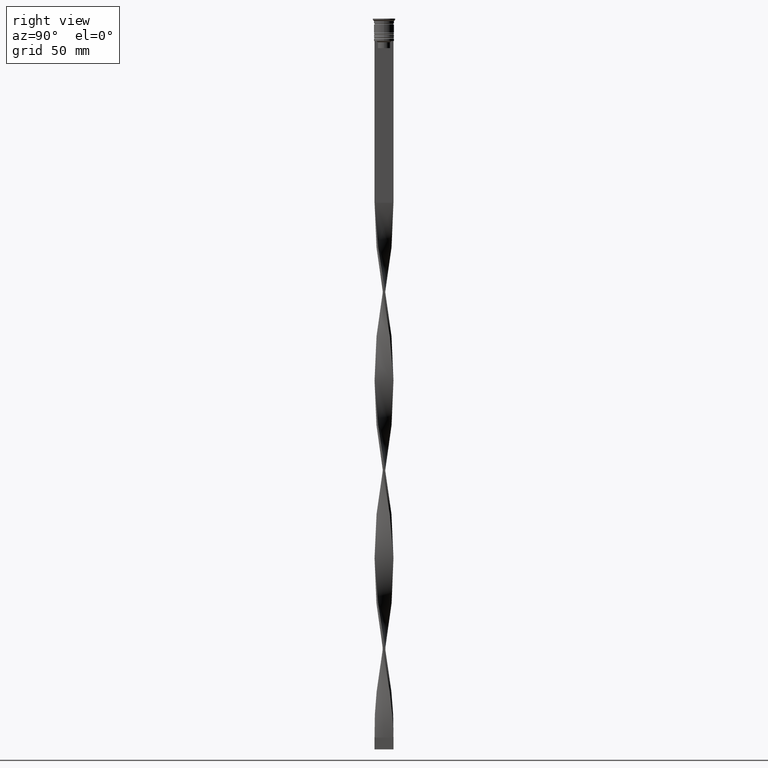
[diagram: clean part render]
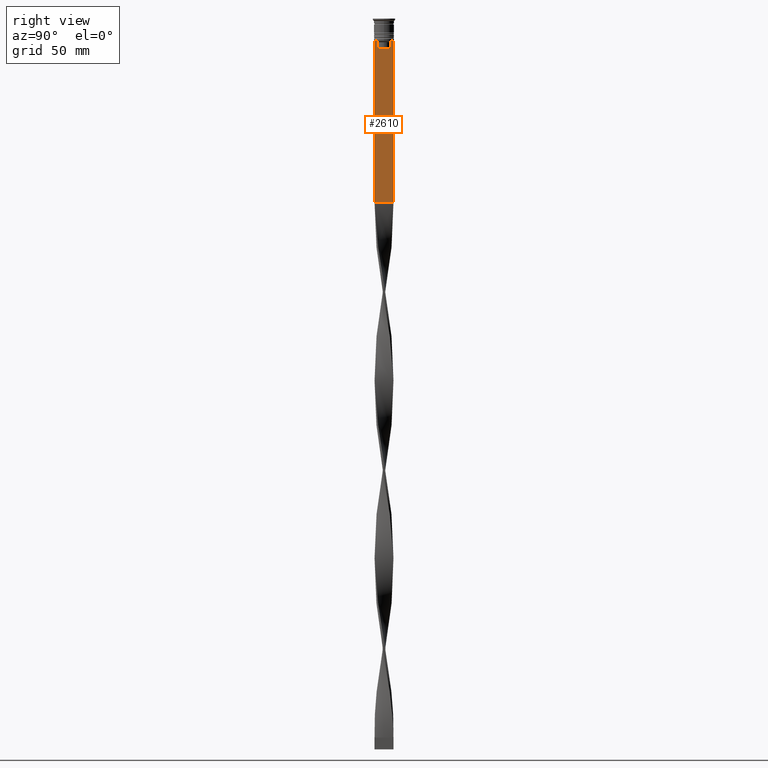
[diagram: same view with one face highlighted and labeled with its STEP entity id]
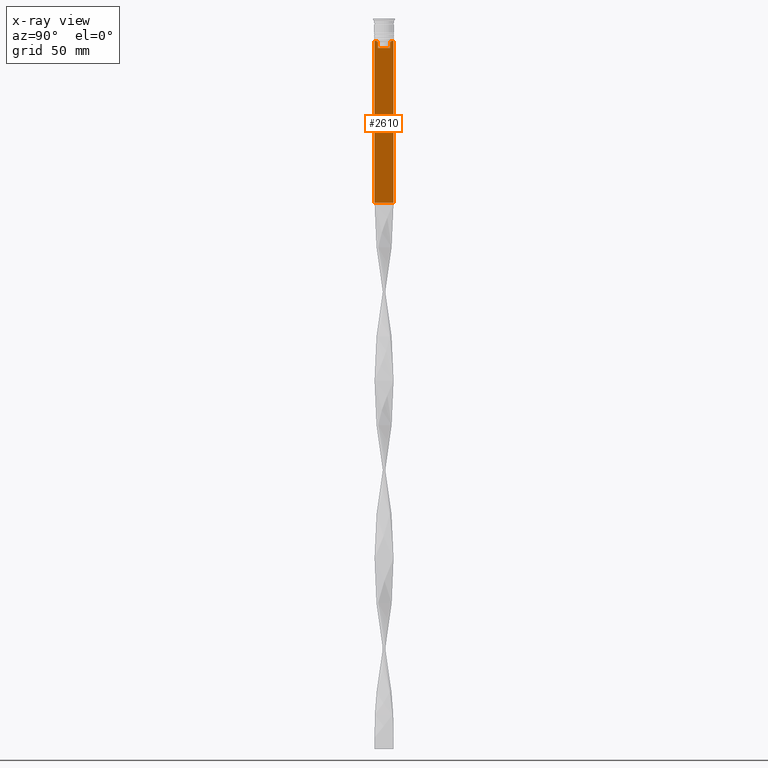
[diagram: x-ray of the same camera — body ghosted, the highlighted face saturated]
A machine part, right view. The second image highlights one B-rep face of the part: STEP entity #2610.
The next image is the same camera in x-ray: the body ghosted, the highlighted face saturated — about 0% of this face is hidden behind the body in this view.
In plain terms, the highlighted planar face has unit normal (-1, 0, 0).
Its self-contained STEP definition (entity closure, byte-faithful):
#20 = ORIENTED_EDGE ( 'NONE', *, *, #1108, .T. ) ;
#67 = ORIENTED_EDGE ( 'NONE', *, *, #259, .T. ) ;
#79 = ORIENTED_EDGE ( 'NONE', *, *, #116, .T. ) ;
#116 = EDGE_CURVE ( 'NONE', #1816, #3439, #1828, .T. ) ;
#130 = B_SPLINE_CURVE_WITH_KNOTS ( 'NONE', 3,
 ( #2520, #674, #2807, #1631 ),
 .UNSPECIFIED., .F., .F.,
 ( 4, 4 ),
 ( 0.005378271293598279809, 0.006090816219555997280 ),
 .UNSPECIFIED. ) ;
#182 = EDGE_CURVE ( 'NONE', #2214, #3006, #3378, .T. ) ;
#193 = CARTESIAN_POINT ( 'NONE',  ( 0.5000000000000000000, 3.110064308016796897, -9.500000000000000000 ) ) ;
#218 = ORIENTED_EDGE ( 'NONE', *, *, #182, .T. ) ;
#259 = EDGE_CURVE ( 'NONE', #3439, #2569, #130, .T. ) ;
#628 = CARTESIAN_POINT ( 'NONE',  ( 0.5000000000000000000, -4.000000000000000000, -1.437742251701450202 ) ) ;
#647 = DIRECTION ( 'NONE',  ( -1.000000000000000000, 0.000000000000000000, 0.000000000000000000 ) ) ;
#674 = CARTESIAN_POINT ( 'NONE',  ( 0.5000000000000000000, 2.941047749529105193, -9.666873766989334982 ) ) ;
#684 = CARTESIAN_POINT ( 'NONE',  ( 0.5000000000000000000, -2.602402735934616906, 0.000000000000000000 ) ) ;
#702 = EDGE_CURVE ( 'NONE', #3006, #1395, #3931, .T. ) ;
#715 = CARTESIAN_POINT ( 'NONE',  ( 0.5000000000000000000, 2.602402735934616906, -12.50000000000000000 ) ) ;
#744 = VECTOR ( 'NONE', #1660, 1000.000000000000000 ) ;
#819 = CARTESIAN_POINT ( 'NONE',  ( 0.5000000000000000000, 4.000000000000000000, -78.00000000000000000 ) ) ;
#826 = VERTEX_POINT ( 'NONE', #715 ) ;
#837 = EDGE_CURVE ( 'NONE', #1395, #2329, #1336, .T. ) ;
#860 = CARTESIAN_POINT ( 'NONE',  ( 0.5000000000000000000, -4.000000000000000000, -9.500000000000000000 ) ) ;
#874 = AXIS2_PLACEMENT_3D ( 'NONE', #628, #647, #2800 ) ;
#944 = CARTESIAN_POINT ( 'NONE',  ( 0.5000000000000000000, -4.000000000000000000, -9.500000000000000000 ) ) ;
#1020 = CARTESIAN_POINT ( 'NONE',  ( 0.5000000000000000000, 2.649999999999995914, -12.50000000000000000 ) ) ;
#1108 = EDGE_CURVE ( 'NONE', #2569, #826, #2892, .T. ) ;
#1153 = CARTESIAN_POINT ( 'NONE',  ( 0.5000000000000000000, -3.110064308016796897, -9.500000000000000000 ) ) ;
#1155 = CARTESIAN_POINT ( 'NONE',  ( 0.5000000000000000000, 2.602402735934616906, 0.000000000000000000 ) ) ;
#1291 = DIRECTION ( 'NONE',  ( 0.000000000000000000, 1.000000000000000000, 0.000000000000000000 ) ) ;
#1323 = VECTOR ( 'NONE', #1601, 1000.000000000000000 ) ;
#1328 = VECTOR ( 'NONE', #1291, 1000.000000000000000 ) ;
#1336 = LINE ( 'NONE', #2561, #2801 ) ;
#1347 = ORIENTED_EDGE ( 'NONE', *, *, #2030, .T. ) ;
#1349 = CARTESIAN_POINT ( 'NONE',  ( 0.5000000000000000000, -4.000000000000000000, -78.00000000000000000 ) ) ;
#1374 = CARTESIAN_POINT ( 'NONE',  ( 0.5000000000000000000, -2.602402735934616906, -10.00000000000000178 ) ) ;
#1375 = VECTOR ( 'NONE', #3866, 1000.000000000000000 ) ;
#1395 = VERTEX_POINT ( 'NONE', #944 ) ;
#1442 = VECTOR ( 'NONE', #2361, 1000.000000000000000 ) ;
#1462 = CARTESIAN_POINT ( 'NONE',  ( 0.5000000000000000000, -4.000000000000000000, -9.500000000000000000 ) ) ;
#1601 = DIRECTION ( 'NONE',  ( -0.000000000000000000, -0.000000000000000000, 1.000000000000000000 ) ) ;
#1631 = CARTESIAN_POINT ( 'NONE',  ( 0.5000000000000000000, 2.602402735934616906, -10.00000000000000178 ) ) ;
#1660 = DIRECTION ( 'NONE',  ( 0.000000000000000000, -1.000000000000000000, 0.000000000000000000 ) ) ;
#1752 = CARTESIAN_POINT ( 'NONE',  ( 0.5000000000000000000, -2.602402735934616906, -10.00000000000000178 ) ) ;
#1816 = VERTEX_POINT ( 'NONE', #2670 ) ;
#1828 = LINE ( 'NONE', #1462, #2396 ) ;
#1873 = LINE ( 'NONE', #684, #1323 ) ;
#2030 = EDGE_CURVE ( 'NONE', #2990, #2214, #1873, .T. ) ;
#2051 = EDGE_CURVE ( 'NONE', #826, #2990, #3452, .T. ) ;
#2147 = CARTESIAN_POINT ( 'NONE',  ( 0.5000000000000000000, -2.941045828809988105, -9.666875663357579640 ) ) ;
#2202 = ORIENTED_EDGE ( 'NONE', *, *, #2659, .T. ) ;
#2214 = VERTEX_POINT ( 'NONE', #1374 ) ;
#2329 = VERTEX_POINT ( 'NONE', #1349 ) ;
#2361 = DIRECTION ( 'NONE',  ( 0.000000000000000000, 0.000000000000000000, -1.000000000000000000 ) ) ;
#2396 = VECTOR ( 'NONE', #3271, 1000.000000000000000 ) ;
#2427 = CARTESIAN_POINT ( 'NONE',  ( 0.5000000000000000000, -2.602402735934616906, -12.50000000000000000 ) ) ;
#2428 = VERTEX_POINT ( 'NONE', #819 ) ;
#2520 = CARTESIAN_POINT ( 'NONE',  ( 0.5000000000000000000, 3.110064308016796897, -9.500000000000000000 ) ) ;
#2561 = CARTESIAN_POINT ( 'NONE',  ( 0.5000000000000000000, -4.000000000000000000, -1.437742251701450202 ) ) ;
#2569 = VERTEX_POINT ( 'NONE', #3437 ) ;
#2610 = ADVANCED_FACE ( 'NONE', ( #3352 ), #3052, .F. ) ;
#2659 = EDGE_CURVE ( 'NONE', #2329, #2428, #3650, .T. ) ;
#2670 = CARTESIAN_POINT ( 'NONE',  ( 0.5000000000000000000, 4.000000000000000000, -9.500000000000000000 ) ) ;
#2733 = EDGE_CURVE ( 'NONE', #1816, #2428, #3074, .T. ) ;
#2800 = DIRECTION ( 'NONE',  ( 0.000000000000000000, 0.000000000000000000, 1.000000000000000000 ) ) ;
#2801 = VECTOR ( 'NONE', #3869, 1000.000000000000000 ) ;
#2807 = CARTESIAN_POINT ( 'NONE',  ( 0.5000000000000000000, 2.771866350855961780, -9.833580160334840059 ) ) ;
#2833 = ORIENTED_EDGE ( 'NONE', *, *, #837, .T. ) ;
#2840 = ORIENTED_EDGE ( 'NONE', *, *, #2733, .F. ) ;
#2873 = VECTOR ( 'NONE', #3698, 1000.000000000000000 ) ;
#2892 = LINE ( 'NONE', #1155, #1442 ) ;
#2990 = VERTEX_POINT ( 'NONE', #2427 ) ;
#3006 = VERTEX_POINT ( 'NONE', #3689 ) ;
#3052 = PLANE ( 'NONE',  #874 ) ;
#3074 = LINE ( 'NONE', #3671, #2873 ) ;
#3214 = EDGE_LOOP ( 'NONE', ( #79, #67, #20, #3217, #1347, #218, #3372, #2833, #2202, #2840 ) ) ;
#3217 = ORIENTED_EDGE ( 'NONE', *, *, #2051, .T. ) ;
#3271 = DIRECTION ( 'NONE',  ( 0.000000000000000000, -1.000000000000000000, 0.000000000000000000 ) ) ;
#3352 = FACE_OUTER_BOUND ( 'NONE', #3214, .T. ) ;
#3372 = ORIENTED_EDGE ( 'NONE', *, *, #702, .T. ) ;
#3378 = B_SPLINE_CURVE_WITH_KNOTS ( 'NONE', 3,
 ( #1752, #3918, #2147, #1153 ),
 .UNSPECIFIED., .F., .F.,
 ( 4, 4 ),
 ( 0.01295151922336847811, 0.01367164596165162602 ),
 .UNSPECIFIED. ) ;
#3437 = CARTESIAN_POINT ( 'NONE',  ( 0.5000000000000000000, 2.602402735934616906, -10.00000000000000178 ) ) ;
#3439 = VERTEX_POINT ( 'NONE', #193 ) ;
#3452 = LINE ( 'NONE', #1020, #744 ) ;
#3650 = LINE ( 'NONE', #3743, #1328 ) ;
#3671 = CARTESIAN_POINT ( 'NONE',  ( 0.5000000000000000000, 4.000000000000000000, -1.437742251701450202 ) ) ;
#3689 = CARTESIAN_POINT ( 'NONE',  ( 0.5000000000000000000, -3.110064308016796897, -9.500000000000000000 ) ) ;
#3698 = DIRECTION ( 'NONE',  ( 0.000000000000000000, 0.000000000000000000, -1.000000000000000000 ) ) ;
#3743 = CARTESIAN_POINT ( 'NONE',  ( 0.5000000000000000000, -4.000000000000000000, -78.00000000000000000 ) ) ;
#3866 = DIRECTION ( 'NONE',  ( 0.000000000000000000, -1.000000000000000000, 0.000000000000000000 ) ) ;
#3869 = DIRECTION ( 'NONE',  ( 0.000000000000000000, 0.000000000000000000, -1.000000000000000000 ) ) ;
#3918 = CARTESIAN_POINT ( 'NONE',  ( 0.5000000000000000000, -2.771864055700302032, -9.833582414266679450 ) ) ;
#3931 = LINE ( 'NONE', #860, #1375 ) ;